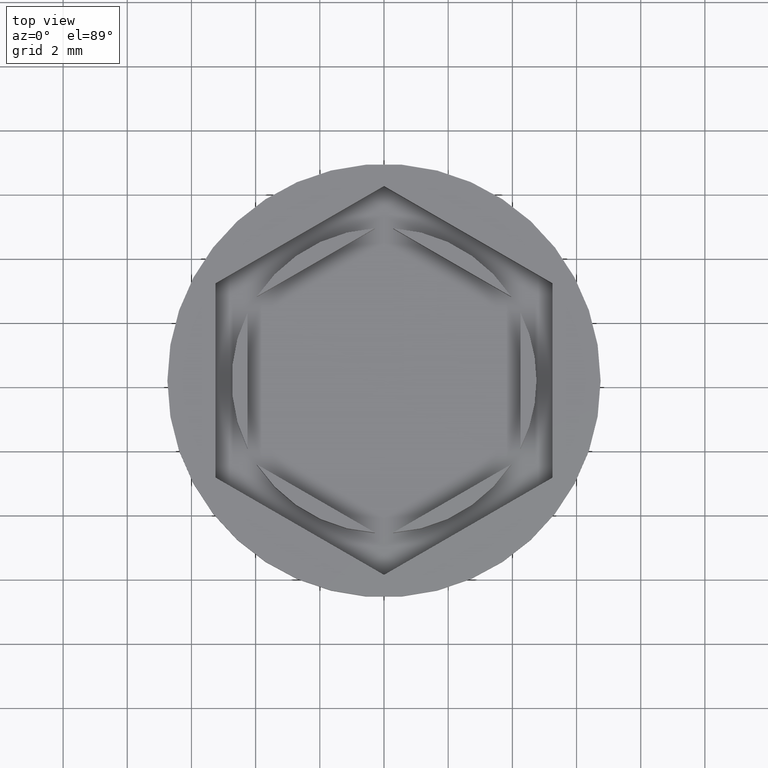
[diagram: clean part render]
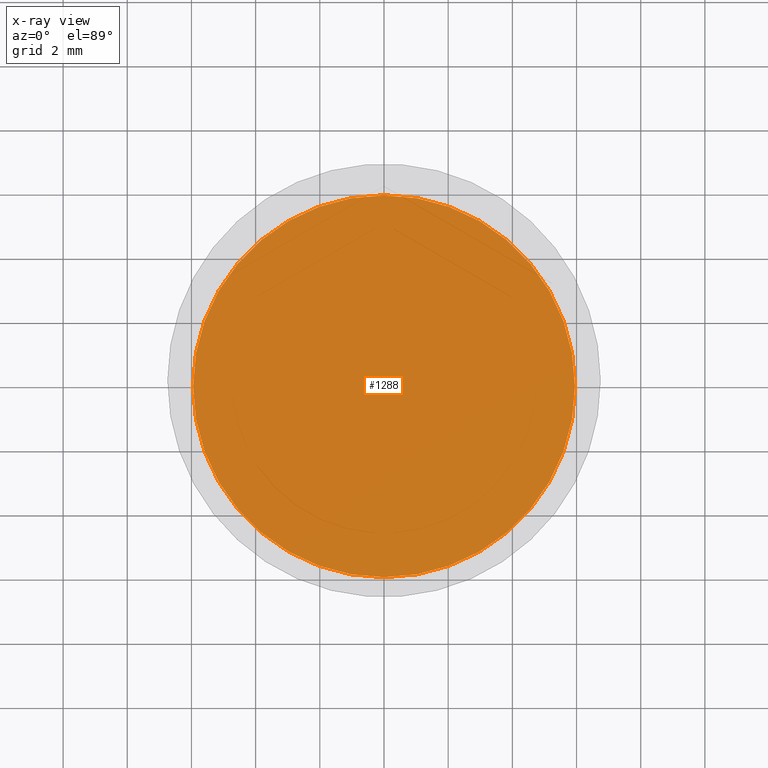
[diagram: x-ray — body ghosted, one internal face saturated and labeled with its STEP entity id]
A machine part, top view, then the same camera in x-ray: the body is ghosted and one INTERNAL B-rep face — a face not visible from any outside direction — is saturated and labeled: STEP entity #1288.
In plain terms, the highlighted planar face has unit normal (0, 0, -1).
Its self-contained STEP definition (entity closure, byte-faithful):
#20 = FACE_OUTER_BOUND ( 'NONE', #575, .T. ) ;
#45 = PLANE ( 'NONE',  #1797 ) ;
#69 = CARTESIAN_POINT ( 'NONE',  ( 0.000000000000000000, 0.000000000000000000, -10.50000000000000000 ) ) ;
#87 = EDGE_CURVE ( 'NONE', #1041, #634, #1889, .T. ) ;
#495 = CIRCLE ( 'NONE', #1221, 5.950000000000000178 ) ;
#575 = EDGE_LOOP ( 'NONE', ( #1726, #666 ) ) ;
#634 = VERTEX_POINT ( 'NONE', #1882 ) ;
#666 = ORIENTED_EDGE ( 'NONE', *, *, #1489, .T. ) ;
#670 = CARTESIAN_POINT ( 'NONE',  ( 0.000000000000000000, 0.000000000000000000, -10.50000000000000000 ) ) ;
#837 = DIRECTION ( 'NONE',  ( -1.000000000000000000, 0.000000000000000000, 0.000000000000000000 ) ) ;
#901 = CARTESIAN_POINT ( 'NONE',  ( -5.950000000000000178, 0.000000000000000000, -10.50000000000000000 ) ) ;
#1041 = VERTEX_POINT ( 'NONE', #901 ) ;
#1221 = AXIS2_PLACEMENT_3D ( 'NONE', #1389, #1838, #1672 ) ;
#1256 = DIRECTION ( 'NONE',  ( 0.000000000000000000, 0.000000000000000000, -1.000000000000000000 ) ) ;
#1288 = ADVANCED_FACE ( 'NONE', ( #20 ), #45, .F. ) ;
#1389 = CARTESIAN_POINT ( 'NONE',  ( 0.000000000000000000, 0.000000000000000000, -10.50000000000000000 ) ) ;
#1489 = EDGE_CURVE ( 'NONE', #634, #1041, #495, .T. ) ;
#1594 = DIRECTION ( 'NONE',  ( -0.000000000000000000, -0.000000000000000000, 1.000000000000000000 ) ) ;
#1672 = DIRECTION ( 'NONE',  ( -1.000000000000000000, 0.000000000000000000, 0.000000000000000000 ) ) ;
#1726 = ORIENTED_EDGE ( 'NONE', *, *, #87, .T. ) ;
#1738 = DIRECTION ( 'NONE',  ( -1.000000000000000000, 0.000000000000000000, -0.000000000000000000 ) ) ;
#1797 = AXIS2_PLACEMENT_3D ( 'NONE', #69, #1256, #1738 ) ;
#1821 = AXIS2_PLACEMENT_3D ( 'NONE', #670, #1594, #837 ) ;
#1838 = DIRECTION ( 'NONE',  ( -0.000000000000000000, -0.000000000000000000, 1.000000000000000000 ) ) ;
#1882 = CARTESIAN_POINT ( 'NONE',  ( 5.950000000000000178, 7.470345474798855279E-16, -10.50000000000000000 ) ) ;
#1889 = CIRCLE ( 'NONE', #1821, 5.950000000000000178 ) ;